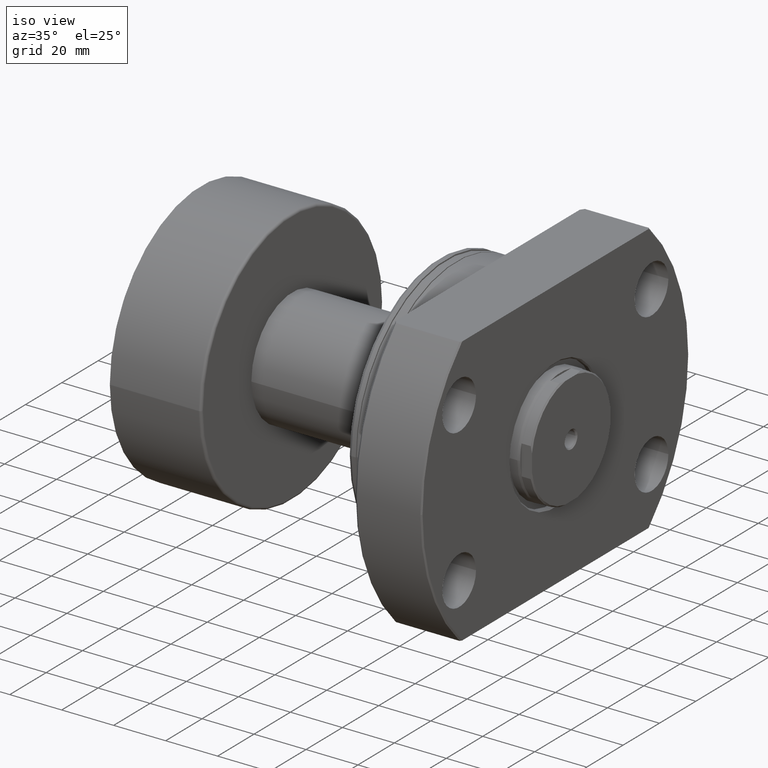
[diagram: clean part render]
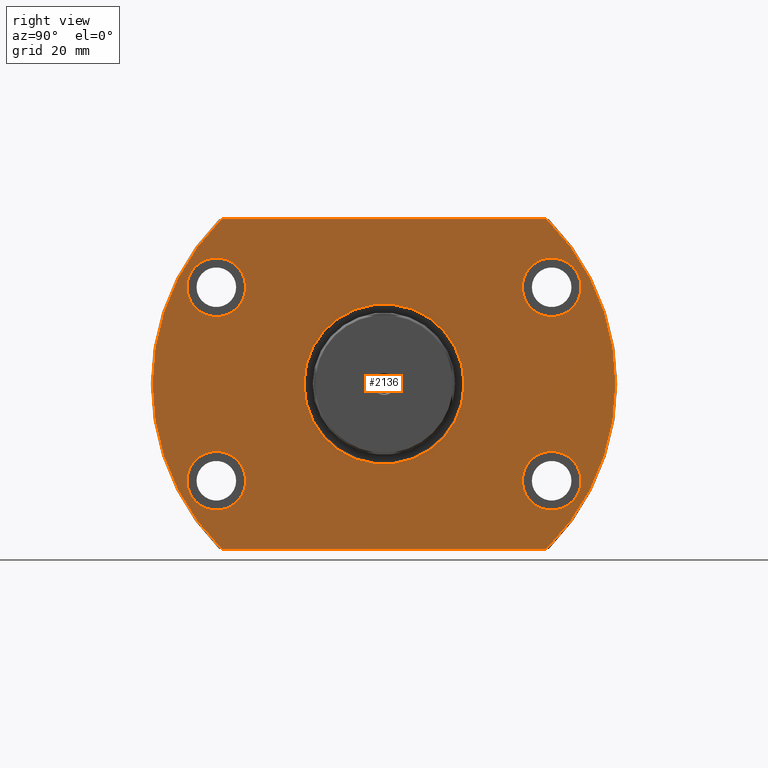
[diagram: tour spotlight — one face highlighted and labeled with its STEP entity id]
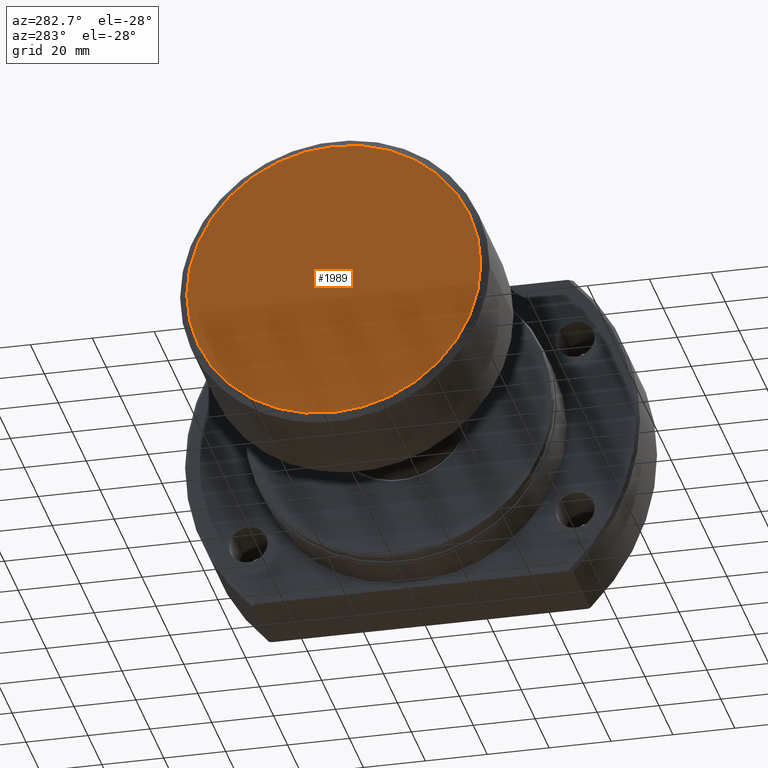
[diagram: tour spotlight — one face highlighted and labeled with its STEP entity id]
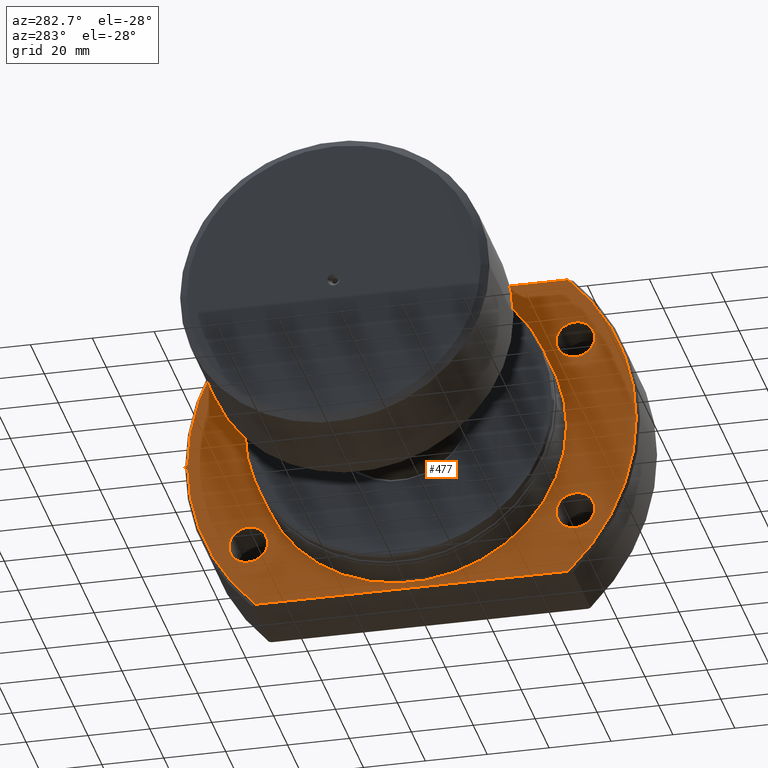
[diagram: tour spotlight — one face highlighted and labeled with its STEP entity id]
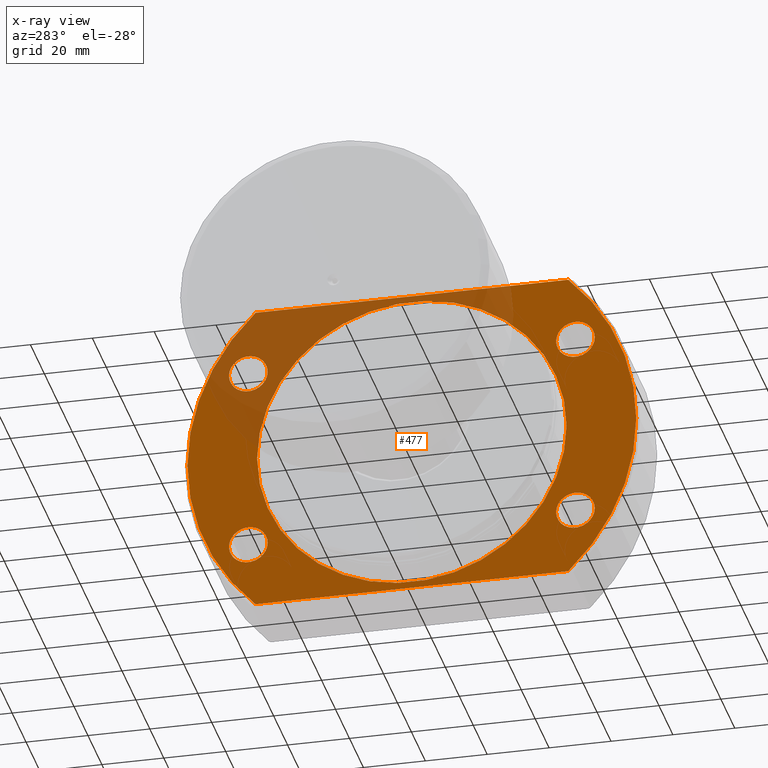
[diagram: x-ray of the same camera — body ghosted, this tour face saturated]
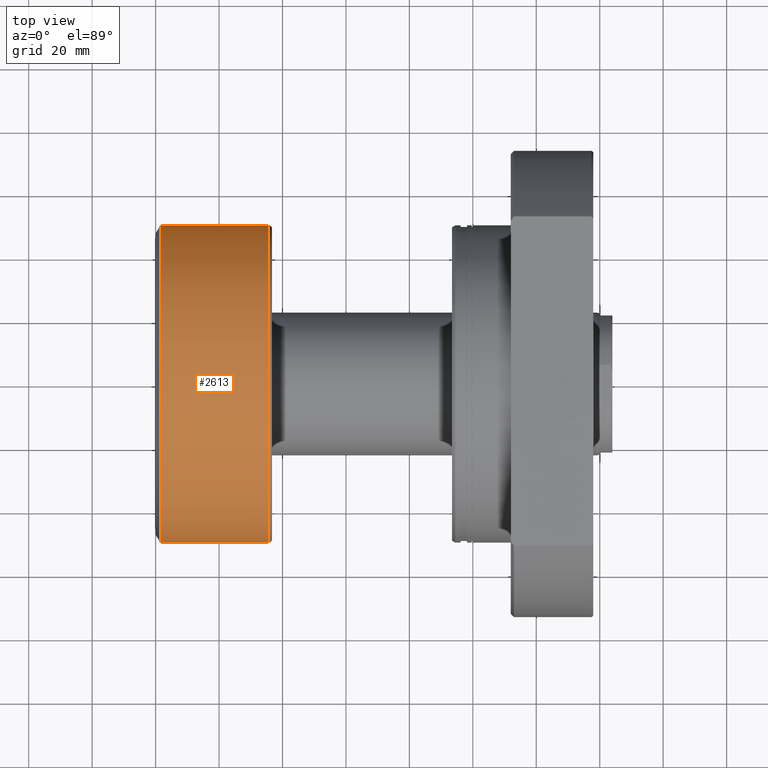
[diagram: tour spotlight — one face highlighted and labeled with its STEP entity id]
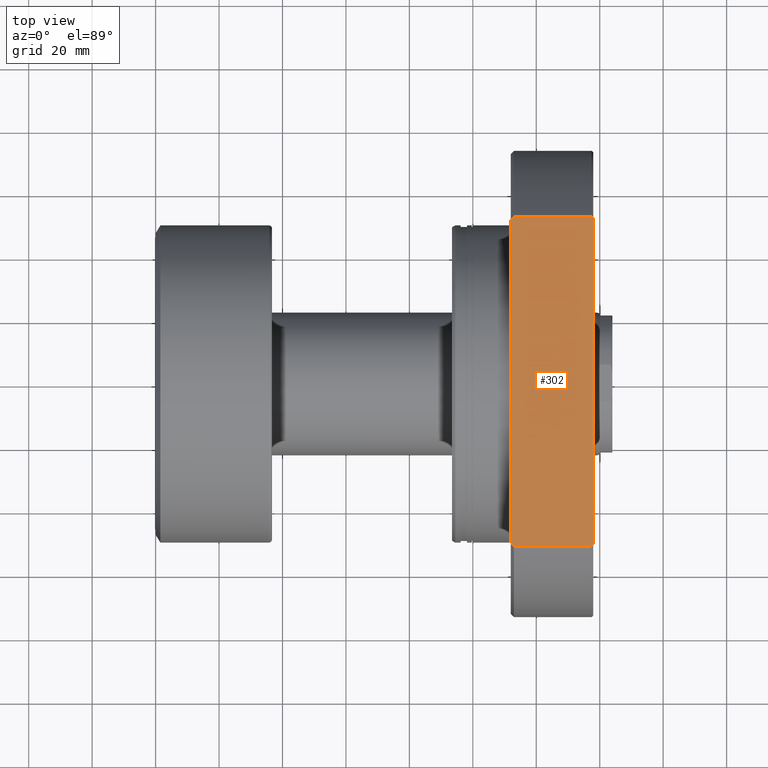
[diagram: tour spotlight — one face highlighted and labeled with its STEP entity id]
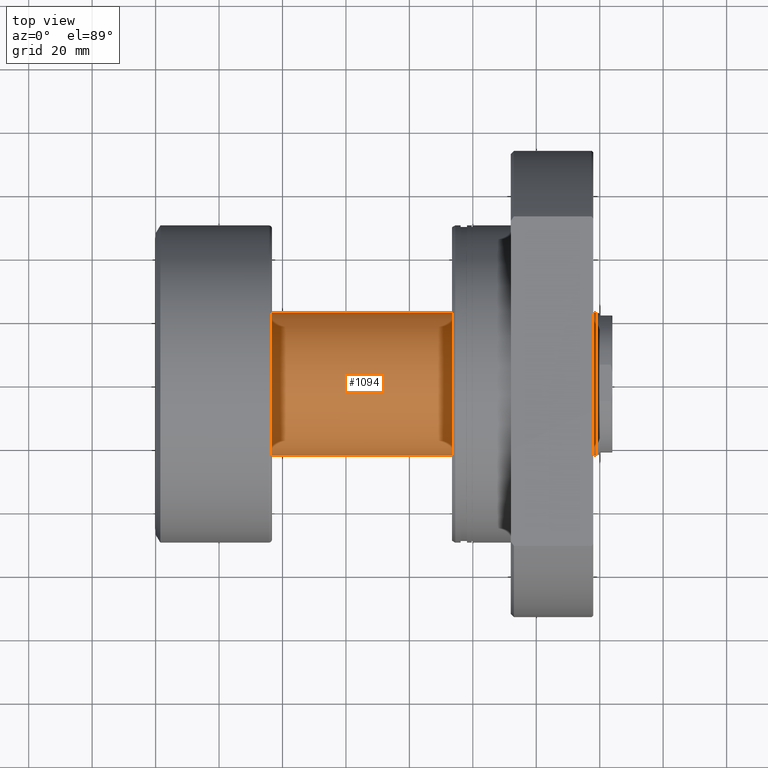
[diagram: tour spotlight — one face highlighted and labeled with its STEP entity id]
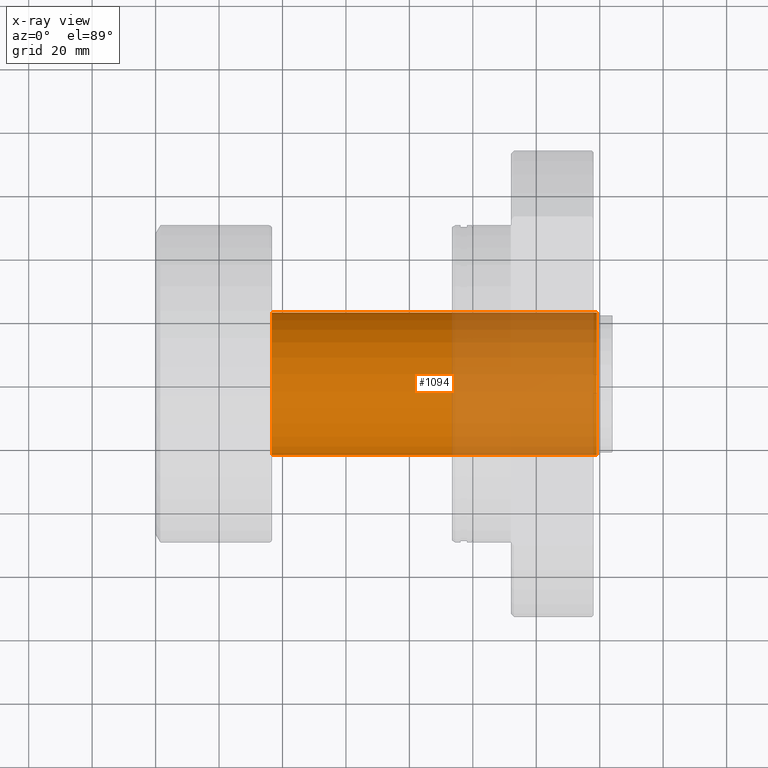
[diagram: x-ray of the same camera — body ghosted, this tour face saturated]
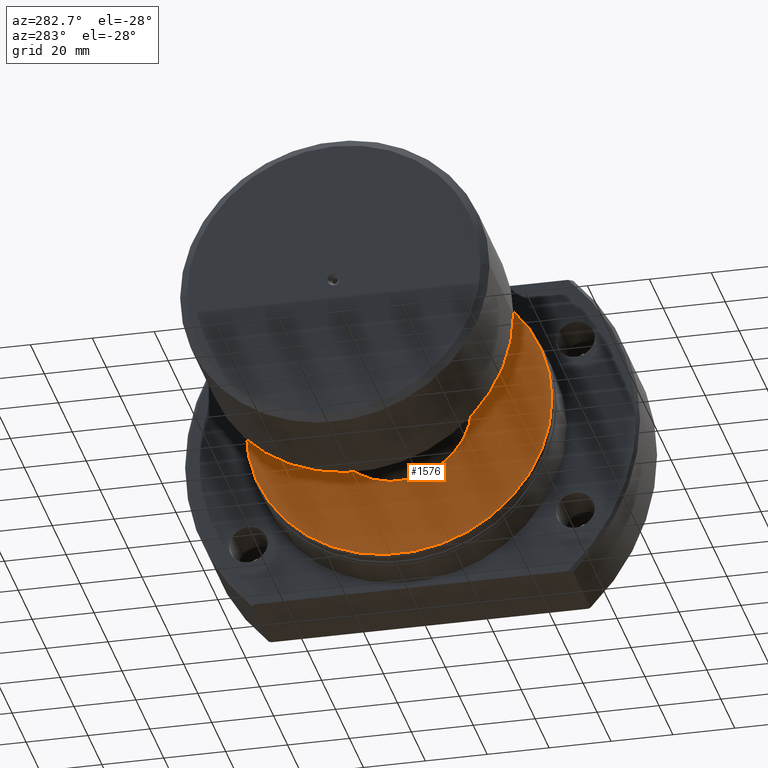
[diagram: tour spotlight — one face highlighted and labeled with its STEP entity id]
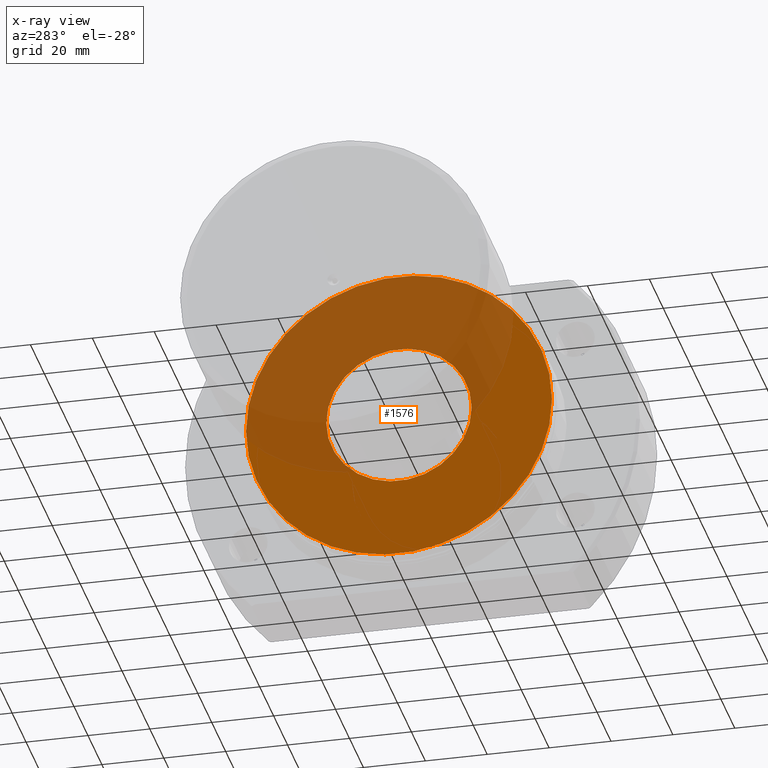
[diagram: x-ray of the same camera — body ghosted, this tour face saturated]
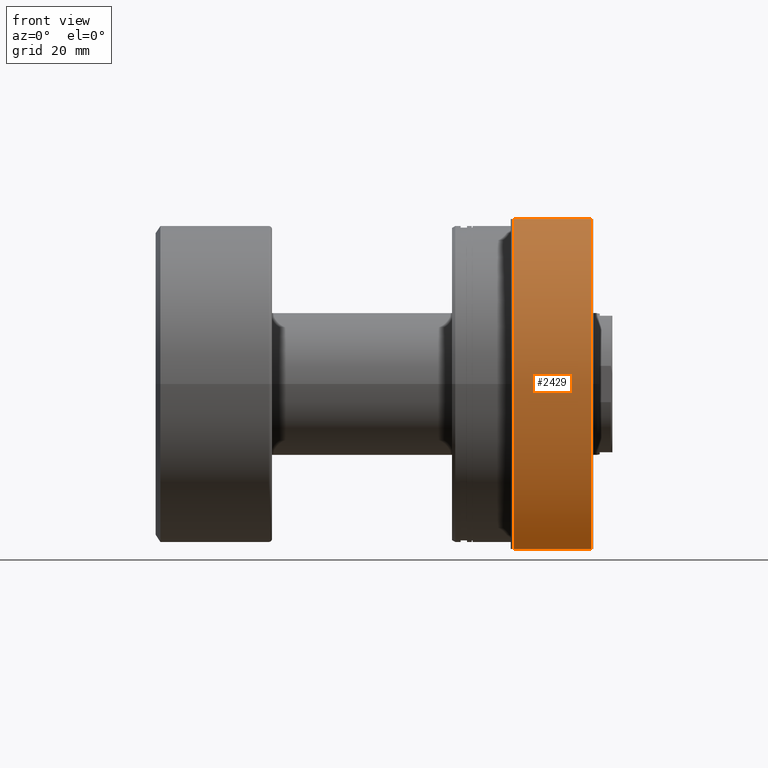
[diagram: tour spotlight — one face highlighted and labeled with its STEP entity id]
A machine part: a face-by-face anatomy tour. The part has 103 B-rep faces; the first image is the clean iso view, then the 8 largest visible faces are spotlighted one at a time (largest first), each with its STEP entity span.

Face 1 — right view, entity #2136. In plain terms, the highlighted planar face has unit normal (-1, -0, 0).
Definition (entity closure, byte-faithful):
#6 = CARTESIAN_POINT ( 'NONE',  ( 44.50000000000124345, 43.59999999999871534, -30.50000000000000000 ) ) ;
#61 = CARTESIAN_POINT ( 'NONE',  ( 44.49999999999819522, -62.10000000000128750, 30.50000000000000000 ) ) ;
#63 = DIRECTION ( 'NONE',  ( 0.000000000000000000, -1.000000000000000000, 0.000000000000000000 ) ) ;
#86 = DIRECTION ( 'NONE',  ( 2.925587700025750053E-14, 1.000000000000000000, 0.000000000000000000 ) ) ;
#128 = AXIS2_PLACEMENT_3D ( 'NONE', #1493, #285, #1222 ) ;
#131 = CIRCLE ( 'NONE', #545, 9.250000000000001776 ) ;
#144 = CIRCLE ( 'NONE', #980, 73.00000000000001421 ) ;
#162 = CARTESIAN_POINT ( 'NONE',  ( 44.50000000000152056, 52.84999999999871534, -30.50000000000000000 ) ) ;
#163 = EDGE_CURVE ( 'NONE', #2778, #225, #3155, .T. ) ;
#175 = DIRECTION ( 'NONE',  ( 1.000000000000000000, -2.888547605177540648E-14, 0.000000000000000000 ) ) ;
#190 = AXIS2_PLACEMENT_3D ( 'NONE', #1201, #175, #2147 ) ;
#198 = AXIS2_PLACEMENT_3D ( 'NONE', #2745, #2439, #212 ) ;
#209 = DIRECTION ( 'NONE',  ( -9.505334114941407284E-17, 1.000000000000000000, 0.000000000000000000 ) ) ;
#212 = DIRECTION ( 'NONE',  ( 5.504030557965630938E-17, -1.000000000000000000, 0.000000000000000000 ) ) ;
#225 = VERTEX_POINT ( 'NONE', #61 ) ;
#230 = DIRECTION ( 'NONE',  ( 2.925587700025750053E-14, 1.000000000000000000, 0.000000000000000000 ) ) ;
#242 = PLANE ( 'NONE',  #198 ) ;
#266 = CARTESIAN_POINT ( 'NONE',  ( 44.50000000000152056, 52.84999999999871534, -30.50000000000000000 ) ) ;
#285 = DIRECTION ( 'NONE',  ( 1.000000000000000000, -2.888547605177540648E-14, 0.000000000000000000 ) ) ;
#295 = EDGE_CURVE ( 'NONE', #1188, #2598, #1478, .T. ) ;
#297 = ORIENTED_EDGE ( 'NONE', *, *, #1362, .F. ) ;
#315 = EDGE_CURVE ( 'NONE', #688, #826, #2517, .T. ) ;
#318 = CARTESIAN_POINT ( 'NONE',  ( 44.49999999999999289, -1.284477419691526336E-12, 0.000000000000000000 ) ) ;
#325 = CARTESIAN_POINT ( 'NONE',  ( 44.49999999999846523, -52.85000000000128750, -30.50000000000000000 ) ) ;
#367 = CARTESIAN_POINT ( 'NONE',  ( 44.49999999999846523, -52.85000000000128750, -30.50000000000000000 ) ) ;
#380 = CARTESIAN_POINT ( 'NONE',  ( 44.49999999999999289, -1.284477419691526336E-12, 0.000000000000000000 ) ) ;
#447 = CIRCLE ( 'NONE', #3111, 25.24999999999855049 ) ;
#448 = AXIS2_PLACEMENT_3D ( 'NONE', #1611, #882, #629 ) ;
#454 = CARTESIAN_POINT ( 'NONE',  ( 44.49999999999999289, 51.94468211472779728, 52.00000000000000000 ) ) ;
#468 = DIRECTION ( 'NONE',  ( -0.000000000000000000, 1.000000000000000000, 0.000000000000000000 ) ) ;
#478 = DIRECTION ( 'NONE',  ( 1.000000000000000000, -2.886466111666351885E-14, 0.000000000000000000 ) ) ;
#482 = FACE_BOUND ( 'NONE', #1607, .T. ) ;
#507 = CIRCLE ( 'NONE', #821, 9.250000000000001776 ) ;
#516 = CIRCLE ( 'NONE', #772, 73.00000000000001421 ) ;
#527 = LINE ( 'NONE', #2026, #2221 ) ;
#545 = AXIS2_PLACEMENT_3D ( 'NONE', #1681, #478, #3002 ) ;
#589 = CARTESIAN_POINT ( 'NONE',  ( 44.49999999999873523, -43.60000000000128040, 30.50000000000000000 ) ) ;
#629 = DIRECTION ( 'NONE',  ( 2.850572630794320387E-14, 1.000000000000000000, 0.000000000000000000 ) ) ;
#633 = VERTEX_POINT ( 'NONE', #6 ) ;
#662 = ORIENTED_EDGE ( 'NONE', *, *, #163, .F. ) ;
#688 = VERTEX_POINT ( 'NONE', #858 ) ;
#693 = DIRECTION ( 'NONE',  ( 1.000000000000000000, 5.504030557965630938E-17, -0.000000000000000000 ) ) ;
#714 = CARTESIAN_POINT ( 'NONE',  ( 44.49999999999999289, 2.449293598294705330E-15, 0.000000000000000000 ) ) ;
#772 = AXIS2_PLACEMENT_3D ( 'NONE', #714, #3182, #1786 ) ;
#802 = CARTESIAN_POINT ( 'NONE',  ( 44.49999999999999289, 25.24999999999726441, 0.000000000000000000 ) ) ;
#821 = AXIS2_PLACEMENT_3D ( 'NONE', #162, #2391, #2878 ) ;
#826 = VERTEX_POINT ( 'NONE', #2462 ) ;
#844 = EDGE_CURVE ( 'NONE', #1578, #1983, #131, .T. ) ;
#858 = CARTESIAN_POINT ( 'NONE',  ( 44.49999999999999289, -51.23475382979801651, 52.00000000000000000 ) ) ;
#879 = DIRECTION ( 'NONE',  ( -1.000000000000000000, -5.504030557965630938E-17, 0.000000000000000000 ) ) ;
#882 = DIRECTION ( 'NONE',  ( 1.000000000000000000, -2.886466111666351885E-14, 0.000000000000000000 ) ) ;
#965 = ORIENTED_EDGE ( 'NONE', *, *, #2587, .T. ) ;
#980 = AXIS2_PLACEMENT_3D ( 'NONE', #1930, #693, #209 ) ;
#1089 = AXIS2_PLACEMENT_3D ( 'NONE', #266, #1768, #230 ) ;
#1115 = DIRECTION ( 'NONE',  ( 1.000000000000000000, -2.888547605177540648E-14, 0.000000000000000000 ) ) ;
#1144 = CARTESIAN_POINT ( 'NONE',  ( 44.50000000000179057, 62.09999999999871534, -30.50000000000000000 ) ) ;
#1157 = ORIENTED_EDGE ( 'NONE', *, *, #2721, .F. ) ;
#1188 = VERTEX_POINT ( 'NONE', #3089 ) ;
#1201 = CARTESIAN_POINT ( 'NONE',  ( 44.49999999999846523, -52.85000000000128750, 30.50000000000000000 ) ) ;
#1222 = DIRECTION ( 'NONE',  ( 2.925587700025750053E-14, 1.000000000000000000, 0.000000000000000000 ) ) ;
#1242 = EDGE_CURVE ( 'NONE', #225, #2778, #2781, .T. ) ;
#1245 = FACE_BOUND ( 'NONE', #2258, .T. ) ;
#1321 = DIRECTION ( 'NONE',  ( 2.925587700025750053E-14, 1.000000000000000000, 0.000000000000000000 ) ) ;
#1362 = EDGE_CURVE ( 'NONE', #1983, #1578, #2420, .T. ) ;
#1403 = EDGE_CURVE ( 'NONE', #2811, #2224, #447, .T. ) ;
#1408 = VERTEX_POINT ( 'NONE', #3080 ) ;
#1478 = CIRCLE ( 'NONE', #2413, 9.250000000000001776 ) ;
#1493 = CARTESIAN_POINT ( 'NONE',  ( 44.49999999999846523, -52.85000000000128750, 30.50000000000000000 ) ) ;
#1498 = AXIS2_PLACEMENT_3D ( 'NONE', #325, #1115, #86 ) ;
#1499 = LINE ( 'NONE', #454, #2690 ) ;
#1578 = VERTEX_POINT ( 'NONE', #1857 ) ;
#1607 = EDGE_LOOP ( 'NONE', ( #1891, #2438 ) ) ;
#1611 = CARTESIAN_POINT ( 'NONE',  ( 44.50000000000152056, 52.84999999999871534, 30.50000000000000000 ) ) ;
#1612 = DIRECTION ( 'NONE',  ( -9.505334114941407284E-17, 1.000000000000000000, 0.000000000000000000 ) ) ;
#1633 = VERTEX_POINT ( 'NONE', #2909 ) ;
#1681 = CARTESIAN_POINT ( 'NONE',  ( 44.50000000000152056, 52.84999999999871534, 30.50000000000000000 ) ) ;
#1729 = DIRECTION ( 'NONE',  ( -5.504030557965630938E-17, 1.000000000000000000, -0.000000000000000000 ) ) ;
#1756 = AXIS2_PLACEMENT_3D ( 'NONE', #318, #1810, #63 ) ;
#1762 = FACE_BOUND ( 'NONE', #2645, .T. ) ;
#1768 = DIRECTION ( 'NONE',  ( 1.000000000000000000, -2.888547605177540648E-14, 0.000000000000000000 ) ) ;
#1786 = DIRECTION ( 'NONE',  ( -9.505334114941407284E-17, 1.000000000000000000, 0.000000000000000000 ) ) ;
#1810 = DIRECTION ( 'NONE',  ( -1.000000000000000000, -5.504030557965630938E-17, 0.000000000000000000 ) ) ;
#1833 = DIRECTION ( 'NONE',  ( 1.000000000000000000, -2.888547605177540648E-14, 0.000000000000000000 ) ) ;
#1843 = ORIENTED_EDGE ( 'NONE', *, *, #844, .F. ) ;
#1844 = AXIS2_PLACEMENT_3D ( 'NONE', #1848, #3035, #1612 ) ;
#1848 = CARTESIAN_POINT ( 'NONE',  ( 44.49999999999999289, 2.449293598294705330E-15, 0.000000000000000000 ) ) ;
#1857 = CARTESIAN_POINT ( 'NONE',  ( 44.50000000000125056, 43.59999999999871534, 30.50000000000000000 ) ) ;
#1891 = ORIENTED_EDGE ( 'NONE', *, *, #1944, .F. ) ;
#1922 = ORIENTED_EDGE ( 'NONE', *, *, #2563, .T. ) ;
#1930 = CARTESIAN_POINT ( 'NONE',  ( 44.49999999999999289, 2.449293598294705330E-15, 0.000000000000000000 ) ) ;
#1944 = EDGE_CURVE ( 'NONE', #2927, #633, #507, .T. ) ;
#1967 = FACE_BOUND ( 'NONE', #2077, .T. ) ;
#1983 = VERTEX_POINT ( 'NONE', #2343 ) ;
#2026 = CARTESIAN_POINT ( 'NONE',  ( 44.50000000000000000, -73.00000000000001421, -52.00000000000000000 ) ) ;
#2031 = ORIENTED_EDGE ( 'NONE', *, *, #295, .F. ) ;
#2077 = EDGE_LOOP ( 'NONE', ( #2538, #2126 ) ) ;
#2126 = ORIENTED_EDGE ( 'NONE', *, *, #2287, .T. ) ;
#2135 = EDGE_CURVE ( 'NONE', #688, #1408, #1499, .T. ) ;
#2136 = ADVANCED_FACE ( 'NONE', ( #1967, #1245, #2491, #1762, #482, #3184 ), #242, .F. ) ;
#2147 = DIRECTION ( 'NONE',  ( 2.925587700025750053E-14, 1.000000000000000000, 0.000000000000000000 ) ) ;
#2221 = VECTOR ( 'NONE', #1729, 1000.000000000000000 ) ;
#2224 = VERTEX_POINT ( 'NONE', #2505 ) ;
#2258 = EDGE_LOOP ( 'NONE', ( #297, #1843 ) ) ;
#2287 = EDGE_CURVE ( 'NONE', #2224, #2811, #3173, .T. ) ;
#2343 = CARTESIAN_POINT ( 'NONE',  ( 44.50000000000178346, 62.09999999999871534, 30.50000000000000000 ) ) ;
#2380 = EDGE_LOOP ( 'NONE', ( #662, #2498 ) ) ;
#2391 = DIRECTION ( 'NONE',  ( 1.000000000000000000, -2.888547605177540648E-14, 0.000000000000000000 ) ) ;
#2413 = AXIS2_PLACEMENT_3D ( 'NONE', #367, #1833, #1321 ) ;
#2420 = CIRCLE ( 'NONE', #448, 9.250000000000001776 ) ;
#2438 = ORIENTED_EDGE ( 'NONE', *, *, #2981, .F. ) ;
#2439 = DIRECTION ( 'NONE',  ( -1.000000000000000000, -5.504030557965630938E-17, 0.000000000000000000 ) ) ;
#2462 = CARTESIAN_POINT ( 'NONE',  ( 44.50000000000000000, -73.00000000000001421, 0.000000000000000000 ) ) ;
#2478 = CIRCLE ( 'NONE', #1089, 9.250000000000001776 ) ;
#2491 = FACE_BOUND ( 'NONE', #2380, .T. ) ;
#2495 = ORIENTED_EDGE ( 'NONE', *, *, #3061, .T. ) ;
#2498 = ORIENTED_EDGE ( 'NONE', *, *, #1242, .F. ) ;
#2505 = CARTESIAN_POINT ( 'NONE',  ( 44.49999999999999289, -25.25000000000129674, 3.092233167847068013E-15 ) ) ;
#2517 = CIRCLE ( 'NONE', #1844, 73.00000000000001421 ) ;
#2538 = ORIENTED_EDGE ( 'NONE', *, *, #1403, .T. ) ;
#2542 = ORIENTED_EDGE ( 'NONE', *, *, #315, .T. ) ;
#2563 = EDGE_CURVE ( 'NONE', #826, #1633, #516, .T. ) ;
#2582 = ORIENTED_EDGE ( 'NONE', *, *, #2135, .F. ) ;
#2587 = EDGE_CURVE ( 'NONE', #2856, #1408, #144, .T. ) ;
#2598 = VERTEX_POINT ( 'NONE', #3190 ) ;
#2645 = EDGE_LOOP ( 'NONE', ( #2031, #1157 ) ) ;
#2690 = VECTOR ( 'NONE', #468, 1000.000000000000000 ) ;
#2692 = CARTESIAN_POINT ( 'NONE',  ( 44.49999999999998579, 51.23475382979800941, -52.00000000000000000 ) ) ;
#2721 = EDGE_CURVE ( 'NONE', #2598, #1188, #3216, .T. ) ;
#2745 = CARTESIAN_POINT ( 'NONE',  ( 44.50000000000000000, -73.00000000000001421, 0.000000000000000000 ) ) ;
#2778 = VERTEX_POINT ( 'NONE', #589 ) ;
#2781 = CIRCLE ( 'NONE', #190, 9.250000000000001776 ) ;
#2811 = VERTEX_POINT ( 'NONE', #802 ) ;
#2856 = VERTEX_POINT ( 'NONE', #2692 ) ;
#2878 = DIRECTION ( 'NONE',  ( 2.925587700025750053E-14, 1.000000000000000000, 0.000000000000000000 ) ) ;
#2909 = CARTESIAN_POINT ( 'NONE',  ( 44.49999999999999289, -51.23475382979800230, -52.00000000000000000 ) ) ;
#2927 = VERTEX_POINT ( 'NONE', #1144 ) ;
#2943 = EDGE_LOOP ( 'NONE', ( #2582, #2542, #1922, #2495, #965 ) ) ;
#2981 = EDGE_CURVE ( 'NONE', #633, #2927, #2478, .T. ) ;
#3002 = DIRECTION ( 'NONE',  ( 2.850572630794320387E-14, 1.000000000000000000, 0.000000000000000000 ) ) ;
#3035 = DIRECTION ( 'NONE',  ( 1.000000000000000000, 5.504030557965630938E-17, -0.000000000000000000 ) ) ;
#3061 = EDGE_CURVE ( 'NONE', #1633, #2856, #527, .T. ) ;
#3080 = CARTESIAN_POINT ( 'NONE',  ( 44.49999999999998579, 51.23475382979800230, 52.00000000000000000 ) ) ;
#3089 = CARTESIAN_POINT ( 'NONE',  ( 44.49999999999873523, -43.60000000000128040, -30.50000000000000000 ) ) ;
#3111 = AXIS2_PLACEMENT_3D ( 'NONE', #380, #879, #3134 ) ;
#3134 = DIRECTION ( 'NONE',  ( 0.000000000000000000, -1.000000000000000000, 0.000000000000000000 ) ) ;
#3155 = CIRCLE ( 'NONE', #128, 9.250000000000001776 ) ;
#3173 = CIRCLE ( 'NONE', #1756, 25.24999999999855049 ) ;
#3182 = DIRECTION ( 'NONE',  ( 1.000000000000000000, 5.504030557965630938E-17, -0.000000000000000000 ) ) ;
#3184 = FACE_OUTER_BOUND ( 'NONE', #2943, .T. ) ;
#3190 = CARTESIAN_POINT ( 'NONE',  ( 44.49999999999819522, -62.10000000000128750, -30.50000000000000000 ) ) ;
#3216 = CIRCLE ( 'NONE', #1498, 9.250000000000001776 ) ;

Face 2 — auxiliary view, entity #1989. In plain terms, the highlighted planar face has unit normal (-1, -0, 0).
Definition (entity closure, byte-faithful):
#126 = EDGE_CURVE ( 'NONE', #636, #2717, #177, .T. ) ;
#177 = CIRCLE ( 'NONE', #2411, 47.50000000000000000 ) ;
#330 = VERTEX_POINT ( 'NONE', #2796 ) ;
#388 = DIRECTION ( 'NONE',  ( 1.069542322069065801E-17, -1.000000000000000000, 0.000000000000000000 ) ) ;
#533 = DIRECTION ( 'NONE',  ( -1.000000000000000000, -1.069542322069065801E-17, -0.000000000000000000 ) ) ;
#546 = DIRECTION ( 'NONE',  ( 1.069542322069065647E-17, -1.000000000000000000, 0.000000000000000000 ) ) ;
#636 = VERTEX_POINT ( 'NONE', #1007 ) ;
#709 = CIRCLE ( 'NONE', #1747, 2.074999999999993516 ) ;
#888 = FACE_BOUND ( 'NONE', #2928, .T. ) ;
#901 = EDGE_CURVE ( 'NONE', #2872, #330, #709, .T. ) ;
#935 = DIRECTION ( 'NONE',  ( -1.000000000000000000, -1.069542322069065801E-17, 0.000000000000000000 ) ) ;
#1007 = CARTESIAN_POINT ( 'NONE',  ( 5.817072295949928215E-15, -47.50000000000000000, 5.970153145843347150E-15 ) ) ;
#1030 = EDGE_CURVE ( 'NONE', #2717, #636, #1385, .T. ) ;
#1220 = DIRECTION ( 'NONE',  ( 1.000000000000000000, 1.069542322069065801E-17, 0.000000000000000000 ) ) ;
#1302 = CIRCLE ( 'NONE', #1397, 2.074999999999993516 ) ;
#1332 = DIRECTION ( 'NONE',  ( 1.000000000000000000, 1.069542322069065801E-17, 0.000000000000000000 ) ) ;
#1345 = AXIS2_PLACEMENT_3D ( 'NONE', #1878, #935, #388 ) ;
#1380 = EDGE_LOOP ( 'NONE', ( #1826, #2195 ) ) ;
#1385 = CIRCLE ( 'NONE', #3202, 47.50000000000000000 ) ;
#1397 = AXIS2_PLACEMENT_3D ( 'NONE', #3109, #1332, #1623 ) ;
#1399 = CARTESIAN_POINT ( 'NONE',  ( 2.654519846483561026E-15, 0.000000000000000000, 0.000000000000000000 ) ) ;
#1474 = ORIENTED_EDGE ( 'NONE', *, *, #2672, .T. ) ;
#1623 = DIRECTION ( 'NONE',  ( 1.069542322069059484E-17, -1.000000000000000000, 0.000000000000000000 ) ) ;
#1747 = AXIS2_PLACEMENT_3D ( 'NONE', #1399, #1220, #1896 ) ;
#1788 = CARTESIAN_POINT ( 'NONE',  ( 5.309039692967122051E-15, 5.678242641172895614E-32, 0.000000000000000000 ) ) ;
#1826 = ORIENTED_EDGE ( 'NONE', *, *, #1030, .T. ) ;
#1878 = CARTESIAN_POINT ( 'NONE',  ( 2.654519846483561026E-15, 2.839121320586447807E-32, 0.000000000000000000 ) ) ;
#1896 = DIRECTION ( 'NONE',  ( 1.069542322069059484E-17, -1.000000000000000000, 0.000000000000000000 ) ) ;
#1913 = DIRECTION ( 'NONE',  ( -1.000000000000000000, -1.069542322069065801E-17, -0.000000000000000000 ) ) ;
#1989 = ADVANCED_FACE ( 'NONE', ( #888, #2134 ), #2641, .T. ) ;
#2039 = CARTESIAN_POINT ( 'NONE',  ( 4.801007089984315887E-15, 47.50000000000000000, 0.000000000000000000 ) ) ;
#2102 = ORIENTED_EDGE ( 'NONE', *, *, #901, .T. ) ;
#2134 = FACE_OUTER_BOUND ( 'NONE', #1380, .T. ) ;
#2183 = DIRECTION ( 'NONE',  ( 1.069542322069065647E-17, -1.000000000000000000, 0.000000000000000000 ) ) ;
#2195 = ORIENTED_EDGE ( 'NONE', *, *, #126, .T. ) ;
#2411 = AXIS2_PLACEMENT_3D ( 'NONE', #1788, #533, #546 ) ;
#2641 = PLANE ( 'NONE',  #1345 ) ;
#2672 = EDGE_CURVE ( 'NONE', #330, #2872, #1302, .T. ) ;
#2717 = VERTEX_POINT ( 'NONE', #2039 ) ;
#2796 = CARTESIAN_POINT ( 'NONE',  ( 2.654519846483561026E-15, 2.541142108230750183E-16, -2.074999999999993516 ) ) ;
#2872 = VERTEX_POINT ( 'NONE', #3146 ) ;
#2918 = CARTESIAN_POINT ( 'NONE',  ( 5.309039692967122051E-15, 5.678242641172895614E-32, 0.000000000000000000 ) ) ;
#2928 = EDGE_LOOP ( 'NONE', ( #2102, #1474 ) ) ;
#3109 = CARTESIAN_POINT ( 'NONE',  ( 2.654519846483561026E-15, 0.000000000000000000, 0.000000000000000000 ) ) ;
#3146 = CARTESIAN_POINT ( 'NONE',  ( 2.654519846483561026E-15, 0.000000000000000000, 2.074999999999993516 ) ) ;
#3202 = AXIS2_PLACEMENT_3D ( 'NONE', #2918, #1913, #2183 ) ;

Face 3 — auxiliary view, entity #477. An x-ray twin of the same camera follows (body ghosted, this face saturated) — the face is partly hidden behind the body. In plain terms, the highlighted planar face has unit normal (1, 0, 0).
Definition (entity closure, byte-faithful):
#3 = FACE_BOUND ( 'NONE', #160, .T. ) ;
#8 = DIRECTION ( 'NONE',  ( 1.000000000000000000, 5.504030557965630938E-17, -0.000000000000000000 ) ) ;
#68 = VERTEX_POINT ( 'NONE', #237 ) ;
#80 = AXIS2_PLACEMENT_3D ( 'NONE', #878, #117, #610 ) ;
#81 = EDGE_LOOP ( 'NONE', ( #263, #1645 ) ) ;
#95 = ORIENTED_EDGE ( 'NONE', *, *, #2336, .F. ) ;
#104 = DIRECTION ( 'NONE',  ( 1.000000000000000000, 5.504030557965630938E-17, -0.000000000000000000 ) ) ;
#117 = DIRECTION ( 'NONE',  ( 1.000000000000000000, 5.504030557965630938E-17, -0.000000000000000000 ) ) ;
#160 = EDGE_LOOP ( 'NONE', ( #653, #2390 ) ) ;
#174 = DIRECTION ( 'NONE',  ( -4.785444071660162135E-17, 1.000000000000000000, 0.000000000000000000 ) ) ;
#179 = CARTESIAN_POINT ( 'NONE',  ( 18.50000000000000000, 59.09999999999947562, 30.50000000000000000 ) ) ;
#182 = VERTEX_POINT ( 'NONE', #1977 ) ;
#187 = AXIS2_PLACEMENT_3D ( 'NONE', #1212, #8, #2016 ) ;
#189 = CARTESIAN_POINT ( 'NONE',  ( 18.50000000000000000, 46.59999999999946851, -30.50000000000000000 ) ) ;
#211 = ORIENTED_EDGE ( 'NONE', *, *, #563, .T. ) ;
#231 = FACE_BOUND ( 'NONE', #1789, .T. ) ;
#237 = CARTESIAN_POINT ( 'NONE',  ( 18.50000000000000711, -46.60000000000053433, -30.50000000000000000 ) ) ;
#253 = DIRECTION ( 'NONE',  ( 1.000000000000000000, 5.504030557965630938E-17, -0.000000000000000000 ) ) ;
#263 = ORIENTED_EDGE ( 'NONE', *, *, #2870, .T. ) ;
#288 = DIRECTION ( 'NONE',  ( 1.000000000000000000, 5.504030557965630938E-17, -0.000000000000000000 ) ) ;
#357 = VERTEX_POINT ( 'NONE', #2082 ) ;
#373 = CARTESIAN_POINT ( 'NONE',  ( 18.50000000000000355, 50.51979809935892263, 52.00000000000000000 ) ) ;
#413 = DIRECTION ( 'NONE',  ( 1.000000000000000000, 5.504030557965630938E-17, -0.000000000000000000 ) ) ;
#436 = DIRECTION ( 'NONE',  ( 1.000000000000000000, 5.504030557965630938E-17, -0.000000000000000000 ) ) ;
#477 = ADVANCED_FACE ( 'NONE', ( #1940, #2246, #1254, #231, #3, #1023 ), #969, .F. ) ;
#563 = EDGE_CURVE ( 'NONE', #1386, #1952, #2367, .T. ) ;
#575 = EDGE_CURVE ( 'NONE', #1097, #2148, #758, .T. ) ;
#582 = DIRECTION ( 'NONE',  ( 1.000000000000000000, 5.504030557965630938E-17, -0.000000000000000000 ) ) ;
#610 = DIRECTION ( 'NONE',  ( 0.000000000000000000, 1.000000000000000000, 0.000000000000000000 ) ) ;
#627 = DIRECTION ( 'NONE',  ( 1.000000000000000000, 5.504030557965630938E-17, -0.000000000000000000 ) ) ;
#653 = ORIENTED_EDGE ( 'NONE', *, *, #575, .T. ) ;
#654 = AXIS2_PLACEMENT_3D ( 'NONE', #2979, #253, #3168 ) ;
#667 = EDGE_CURVE ( 'NONE', #1892, #357, #2309, .T. ) ;
#682 = EDGE_CURVE ( 'NONE', #182, #3072, #2108, .T. ) ;
#701 = EDGE_LOOP ( 'NONE', ( #2720, #3106 ) ) ;
#708 = DIRECTION ( 'NONE',  ( -5.504030557965630938E-17, 1.000000000000000000, 0.000000000000000000 ) ) ;
#758 = CIRCLE ( 'NONE', #2468, 50.00000000000000000 ) ;
#773 = CARTESIAN_POINT ( 'NONE',  ( 18.50000000000000711, -50.00000000000000000, 0.000000000000000000 ) ) ;
#828 = CIRCLE ( 'NONE', #931, 6.249999999999998224 ) ;
#865 = CARTESIAN_POINT ( 'NONE',  ( 18.50000000000000711, 1.018245653223641951E-15, 0.000000000000000000 ) ) ;
#878 = CARTESIAN_POINT ( 'NONE',  ( 18.50000000000000000, 52.84999999999947562, 30.50000000000000000 ) ) ;
#914 = DIRECTION ( 'NONE',  ( 1.000000000000000000, 5.504030557965630938E-17, -0.000000000000000000 ) ) ;
#931 = AXIS2_PLACEMENT_3D ( 'NONE', #2576, #627, #1125 ) ;
#969 = PLANE ( 'NONE',  #2002 ) ;
#1004 = CARTESIAN_POINT ( 'NONE',  ( 18.50000000000000711, -50.51979809935892263, -52.00000000000000000 ) ) ;
#1005 = DIRECTION ( 'NONE',  ( 1.000000000000000000, 5.504030557965630938E-17, -0.000000000000000000 ) ) ;
#1023 = FACE_OUTER_BOUND ( 'NONE', #1613, .T. ) ;
#1055 = ORIENTED_EDGE ( 'NONE', *, *, #667, .T. ) ;
#1097 = VERTEX_POINT ( 'NONE', #2457 ) ;
#1125 = DIRECTION ( 'NONE',  ( 0.000000000000000000, 1.000000000000000000, 0.000000000000000000 ) ) ;
#1147 = CIRCLE ( 'NONE', #1960, 72.49999999999992895 ) ;
#1152 = ORIENTED_EDGE ( 'NONE', *, *, #682, .T. ) ;
#1158 = CARTESIAN_POINT ( 'NONE',  ( 18.50000000000000000, 52.84999999999946851, -30.50000000000000000 ) ) ;
#1181 = VERTEX_POINT ( 'NONE', #2572 ) ;
#1212 = CARTESIAN_POINT ( 'NONE',  ( 18.50000000000000000, 52.84999999999946851, -30.50000000000000000 ) ) ;
#1223 = EDGE_CURVE ( 'NONE', #357, #1892, #3108, .T. ) ;
#1233 = AXIS2_PLACEMENT_3D ( 'NONE', #2555, #914, #1733 ) ;
#1238 = CIRCLE ( 'NONE', #2736, 6.249999999999998224 ) ;
#1243 = CARTESIAN_POINT ( 'NONE',  ( 18.50000000000000000, 1.018245653223641557E-15, 0.000000000000000000 ) ) ;
#1253 = EDGE_CURVE ( 'NONE', #2148, #1097, #3048, .T. ) ;
#1254 = FACE_BOUND ( 'NONE', #81, .T. ) ;
#1271 = VERTEX_POINT ( 'NONE', #1430 ) ;
#1315 = ORIENTED_EDGE ( 'NONE', *, *, #2174, .F. ) ;
#1338 = DIRECTION ( 'NONE',  ( -4.785444071660162135E-17, 1.000000000000000000, 0.000000000000000000 ) ) ;
#1368 = ORIENTED_EDGE ( 'NONE', *, *, #2648, .F. ) ;
#1386 = VERTEX_POINT ( 'NONE', #189 ) ;
#1392 = CIRCLE ( 'NONE', #1806, 6.249999999999998224 ) ;
#1400 = AXIS2_PLACEMENT_3D ( 'NONE', #2426, #2659, #2929 ) ;
#1430 = CARTESIAN_POINT ( 'NONE',  ( 18.50000000000000711, -59.10000000000053433, -30.50000000000000000 ) ) ;
#1465 = VERTEX_POINT ( 'NONE', #2248 ) ;
#1573 = CARTESIAN_POINT ( 'NONE',  ( 18.50000000000000711, 1.018245653223641951E-15, 0.000000000000000000 ) ) ;
#1580 = DIRECTION ( 'NONE',  ( 0.000000000000000000, 1.000000000000000000, 0.000000000000000000 ) ) ;
#1595 = ORIENTED_EDGE ( 'NONE', *, *, #2200, .F. ) ;
#1613 = EDGE_LOOP ( 'NONE', ( #1315, #1368, #1595, #1152, #95 ) ) ;
#1616 = CARTESIAN_POINT ( 'NONE',  ( 18.50000000000000711, -52.85000000000052722, 30.50000000000000000 ) ) ;
#1645 = ORIENTED_EDGE ( 'NONE', *, *, #2780, .T. ) ;
#1688 = EDGE_LOOP ( 'NONE', ( #1055, #1798 ) ) ;
#1733 = DIRECTION ( 'NONE',  ( 0.000000000000000000, 1.000000000000000000, 0.000000000000000000 ) ) ;
#1789 = EDGE_LOOP ( 'NONE', ( #2883, #211 ) ) ;
#1798 = ORIENTED_EDGE ( 'NONE', *, *, #1223, .T. ) ;
#1806 = AXIS2_PLACEMENT_3D ( 'NONE', #1616, #436, #1888 ) ;
#1846 = DIRECTION ( 'NONE',  ( 5.504030557965630938E-17, -1.000000000000000000, 0.000000000000000000 ) ) ;
#1888 = DIRECTION ( 'NONE',  ( 0.000000000000000000, 1.000000000000000000, 0.000000000000000000 ) ) ;
#1892 = VERTEX_POINT ( 'NONE', #179 ) ;
#1934 = CARTESIAN_POINT ( 'NONE',  ( 18.50000000000000355, -50.00000000000000000, 6.123233995736766085E-15 ) ) ;
#1940 = FACE_BOUND ( 'NONE', #1688, .T. ) ;
#1952 = VERTEX_POINT ( 'NONE', #2122 ) ;
#1954 = EDGE_CURVE ( 'NONE', #1952, #1386, #1238, .T. ) ;
#1960 = AXIS2_PLACEMENT_3D ( 'NONE', #3022, #288, #1338 ) ;
#1961 = CIRCLE ( 'NONE', #2070, 72.49999999999992895 ) ;
#1974 = EDGE_CURVE ( 'NONE', #1465, #3090, #1392, .T. ) ;
#1977 = CARTESIAN_POINT ( 'NONE',  ( 18.50000000000000355, 50.51979809935892263, -52.00000000000000000 ) ) ;
#1979 = DIRECTION ( 'NONE',  ( 5.504030557965630938E-17, -1.000000000000000000, 0.000000000000000000 ) ) ;
#2002 = AXIS2_PLACEMENT_3D ( 'NONE', #773, #1005, #708 ) ;
#2016 = DIRECTION ( 'NONE',  ( 0.000000000000000000, 1.000000000000000000, 0.000000000000000000 ) ) ;
#2023 = VERTEX_POINT ( 'NONE', #373 ) ;
#2070 = AXIS2_PLACEMENT_3D ( 'NONE', #1573, #104, #2559 ) ;
#2082 = CARTESIAN_POINT ( 'NONE',  ( 18.50000000000000000, 46.59999999999947562, 30.50000000000000000 ) ) ;
#2083 = VERTEX_POINT ( 'NONE', #2684 ) ;
#2108 = LINE ( 'NONE', #2577, #2933 ) ;
#2121 = CIRCLE ( 'NONE', #2942, 6.249999999999998224 ) ;
#2122 = CARTESIAN_POINT ( 'NONE',  ( 18.50000000000000000, 59.09999999999946851, -30.50000000000000000 ) ) ;
#2148 = VERTEX_POINT ( 'NONE', #1934 ) ;
#2174 = EDGE_CURVE ( 'NONE', #2023, #1181, #3118, .T. ) ;
#2192 = CARTESIAN_POINT ( 'NONE',  ( 18.50000000000000711, -50.00000000000000000, 52.00000000000000000 ) ) ;
#2200 = EDGE_CURVE ( 'NONE', #182, #2083, #1147, .T. ) ;
#2223 = DIRECTION ( 'NONE',  ( 1.000000000000000000, 5.504030557965630938E-17, -0.000000000000000000 ) ) ;
#2245 = CARTESIAN_POINT ( 'NONE',  ( 18.50000000000000711, -46.60000000000052722, 30.50000000000000000 ) ) ;
#2246 = FACE_BOUND ( 'NONE', #701, .T. ) ;
#2248 = CARTESIAN_POINT ( 'NONE',  ( 18.50000000000000711, -59.10000000000052722, 30.50000000000000000 ) ) ;
#2305 = EDGE_CURVE ( 'NONE', #3090, #1465, #2121, .T. ) ;
#2309 = CIRCLE ( 'NONE', #80, 6.249999999999998224 ) ;
#2336 = EDGE_CURVE ( 'NONE', #1181, #3072, #2850, .T. ) ;
#2367 = CIRCLE ( 'NONE', #187, 6.249999999999998224 ) ;
#2390 = ORIENTED_EDGE ( 'NONE', *, *, #1253, .T. ) ;
#2426 = CARTESIAN_POINT ( 'NONE',  ( 18.50000000000000711, -52.85000000000053433, -30.50000000000000000 ) ) ;
#2457 = CARTESIAN_POINT ( 'NONE',  ( 18.49999999999999645, 50.00000000000000000, 0.000000000000000000 ) ) ;
#2468 = AXIS2_PLACEMENT_3D ( 'NONE', #1243, #2223, #2967 ) ;
#2555 = CARTESIAN_POINT ( 'NONE',  ( 18.50000000000000000, 52.84999999999947562, 30.50000000000000000 ) ) ;
#2559 = DIRECTION ( 'NONE',  ( -4.785444071660162135E-17, 1.000000000000000000, 0.000000000000000000 ) ) ;
#2572 = CARTESIAN_POINT ( 'NONE',  ( 18.50000000000000711, -50.51979809935892263, 52.00000000000000000 ) ) ;
#2576 = CARTESIAN_POINT ( 'NONE',  ( 18.50000000000000711, -52.85000000000053433, -30.50000000000000000 ) ) ;
#2577 = CARTESIAN_POINT ( 'NONE',  ( 18.50000000000000711, -50.00000000000000000, -52.00000000000000000 ) ) ;
#2617 = DIRECTION ( 'NONE',  ( 0.000000000000000000, 1.000000000000000000, 0.000000000000000000 ) ) ;
#2636 = CIRCLE ( 'NONE', #1400, 6.249999999999998224 ) ;
#2648 = EDGE_CURVE ( 'NONE', #2083, #2023, #1961, .T. ) ;
#2659 = DIRECTION ( 'NONE',  ( 1.000000000000000000, 5.504030557965630938E-17, -0.000000000000000000 ) ) ;
#2684 = CARTESIAN_POINT ( 'NONE',  ( 18.50000000000000355, 72.49999999999992895, 0.000000000000000000 ) ) ;
#2720 = ORIENTED_EDGE ( 'NONE', *, *, #2305, .T. ) ;
#2736 = AXIS2_PLACEMENT_3D ( 'NONE', #1158, #413, #2617 ) ;
#2738 = VECTOR ( 'NONE', #1979, 1000.000000000000000 ) ;
#2780 = EDGE_CURVE ( 'NONE', #1271, #68, #828, .T. ) ;
#2812 = CARTESIAN_POINT ( 'NONE',  ( 18.50000000000000711, -52.85000000000052722, 30.50000000000000000 ) ) ;
#2850 = CIRCLE ( 'NONE', #2997, 72.49999999999992895 ) ;
#2861 = DIRECTION ( 'NONE',  ( 1.000000000000000000, 5.504030557965630938E-17, -0.000000000000000000 ) ) ;
#2870 = EDGE_CURVE ( 'NONE', #68, #1271, #2636, .T. ) ;
#2883 = ORIENTED_EDGE ( 'NONE', *, *, #1954, .T. ) ;
#2929 = DIRECTION ( 'NONE',  ( 0.000000000000000000, 1.000000000000000000, 0.000000000000000000 ) ) ;
#2933 = VECTOR ( 'NONE', #1846, 1000.000000000000000 ) ;
#2942 = AXIS2_PLACEMENT_3D ( 'NONE', #2812, #582, #1580 ) ;
#2967 = DIRECTION ( 'NONE',  ( -6.938893903907228378E-17, 1.000000000000000000, 0.000000000000000000 ) ) ;
#2979 = CARTESIAN_POINT ( 'NONE',  ( 18.50000000000000000, 1.018245653223641557E-15, 0.000000000000000000 ) ) ;
#2997 = AXIS2_PLACEMENT_3D ( 'NONE', #865, #2861, #174 ) ;
#3022 = CARTESIAN_POINT ( 'NONE',  ( 18.50000000000000711, 1.018245653223641951E-15, 0.000000000000000000 ) ) ;
#3048 = CIRCLE ( 'NONE', #654, 50.00000000000000000 ) ;
#3072 = VERTEX_POINT ( 'NONE', #1004 ) ;
#3090 = VERTEX_POINT ( 'NONE', #2245 ) ;
#3106 = ORIENTED_EDGE ( 'NONE', *, *, #1974, .T. ) ;
#3108 = CIRCLE ( 'NONE', #1233, 6.249999999999998224 ) ;
#3118 = LINE ( 'NONE', #2192, #2738 ) ;
#3168 = DIRECTION ( 'NONE',  ( -6.938893903907228378E-17, 1.000000000000000000, 0.000000000000000000 ) ) ;

Face 4 — top view, entity #2613. In plain terms, the highlighted cylindrical surface (partial cylindrical patch) has radius 50 mm, axis along (-1, -0, -0).
Definition (entity closure, byte-faithful):
#39 = VECTOR ( 'NONE', #1312, 1000.000000000000000 ) ;
#44 = CARTESIAN_POINT ( 'NONE',  ( 0.000000000000000000, 0.000000000000000000, 0.000000000000000000 ) ) ;
#65 = EDGE_CURVE ( 'NONE', #584, #1652, #646, .T. ) ;
#167 = ORIENTED_EDGE ( 'NONE', *, *, #1718, .T. ) ;
#457 = AXIS2_PLACEMENT_3D ( 'NONE', #44, #679, #1026 ) ;
#462 = DIRECTION ( 'NONE',  ( -1.000000000000000000, -1.069542322069065801E-17, -0.000000000000000000 ) ) ;
#584 = VERTEX_POINT ( 'NONE', #2699 ) ;
#646 = CIRCLE ( 'NONE', #2621, 50.00000000000000000 ) ;
#679 = DIRECTION ( 'NONE',  ( -1.000000000000000000, -1.069542322069065801E-17, -0.000000000000000000 ) ) ;
#863 = EDGE_LOOP ( 'NONE', ( #2758, #167, #2212, #896 ) ) ;
#896 = ORIENTED_EDGE ( 'NONE', *, *, #2814, .F. ) ;
#954 = CARTESIAN_POINT ( 'NONE',  ( 35.70000000000000284, 3.818266089786565135E-16, 0.000000000000000000 ) ) ;
#1018 = VERTEX_POINT ( 'NONE', #2822 ) ;
#1026 = DIRECTION ( 'NONE',  ( 1.069542322069065955E-17, -1.000000000000000000, 0.000000000000000000 ) ) ;
#1029 = CIRCLE ( 'NONE', #2728, 50.00000000000000000 ) ;
#1045 = CYLINDRICAL_SURFACE ( 'NONE', #457, 50.00000000000000000 ) ;
#1053 = CARTESIAN_POINT ( 'NONE',  ( -5.347711610345329959E-16, 50.00000000000000000, 6.123233995736766085E-15 ) ) ;
#1074 = EDGE_CURVE ( 'NONE', #1018, #1760, #1029, .T. ) ;
#1088 = CARTESIAN_POINT ( 'NONE',  ( 1.500000000000005995, 1.604313483103604941E-17, 0.000000000000000000 ) ) ;
#1110 = DIRECTION ( 'NONE',  ( -1.000000000000000000, -1.069542322069065801E-17, -0.000000000000000000 ) ) ;
#1237 = VECTOR ( 'NONE', #462, 1000.000000000000000 ) ;
#1312 = DIRECTION ( 'NONE',  ( -1.000000000000000000, -1.069542322069065801E-17, -0.000000000000000000 ) ) ;
#1518 = LINE ( 'NONE', #1053, #39 ) ;
#1652 = VERTEX_POINT ( 'NONE', #2486 ) ;
#1718 = EDGE_CURVE ( 'NONE', #1760, #1652, #1518, .T. ) ;
#1760 = VERTEX_POINT ( 'NONE', #3041 ) ;
#1827 = DIRECTION ( 'NONE',  ( 8.673617379884035472E-18, -1.000000000000000000, 0.000000000000000000 ) ) ;
#2028 = FACE_OUTER_BOUND ( 'NONE', #863, .T. ) ;
#2212 = ORIENTED_EDGE ( 'NONE', *, *, #65, .F. ) ;
#2410 = CARTESIAN_POINT ( 'NONE',  ( 5.347711610345329959E-16, -50.00000000000000000, 0.000000000000000000 ) ) ;
#2486 = CARTESIAN_POINT ( 'NONE',  ( 1.500000000000005551, 50.00000000000000000, 0.000000000000000000 ) ) ;
#2613 = ADVANCED_FACE ( 'NONE', ( #2028 ), #1045, .T. ) ;
#2621 = AXIS2_PLACEMENT_3D ( 'NONE', #1088, #1110, #1827 ) ;
#2699 = CARTESIAN_POINT ( 'NONE',  ( 1.500000000000006217, -50.00000000000000000, 6.123233995736766085E-15 ) ) ;
#2728 = AXIS2_PLACEMENT_3D ( 'NONE', #954, #3030, #2753 ) ;
#2753 = DIRECTION ( 'NONE',  ( 0.000000000000000000, -1.000000000000000000, 0.000000000000000000 ) ) ;
#2758 = ORIENTED_EDGE ( 'NONE', *, *, #1074, .T. ) ;
#2814 = EDGE_CURVE ( 'NONE', #1018, #584, #2868, .T. ) ;
#2822 = CARTESIAN_POINT ( 'NONE',  ( 35.70000000000000284, -50.00000000000000000, 0.000000000000000000 ) ) ;
#2868 = LINE ( 'NONE', #2410, #1237 ) ;
#3030 = DIRECTION ( 'NONE',  ( -1.000000000000000000, -1.069542322069065801E-17, -0.000000000000000000 ) ) ;
#3041 = CARTESIAN_POINT ( 'NONE',  ( 35.70000000000000284, 50.00000000000000000, 6.123233995736766085E-15 ) ) ;

Face 5 — top view, entity #302. In plain terms, the highlighted planar face has unit normal (0, 0, 1).
Definition (entity closure, byte-faithful):
#60 = CARTESIAN_POINT ( 'NONE',  ( 44.33372060663039349, -51.47167105509207374, 52.00000000000000000 ) ) ;
#107 = PLANE ( 'NONE',  #3199 ) ;
#239 = CARTESIAN_POINT ( 'NONE',  ( 19.49999999999999289, -51.94468211472581487, 52.00000000000000000 ) ) ;
#284 = CARTESIAN_POINT ( 'NONE',  ( 44.16705041831157530, -51.70831132091212368, 52.00000000000000000 ) ) ;
#302 = ADVANCED_FACE ( 'NONE', ( #2597 ), #107, .T. ) ;
#312 = CARTESIAN_POINT ( 'NONE',  ( 44.00000000000007816, 51.94468211472652541, 52.00000000000000000 ) ) ;
#323 = CARTESIAN_POINT ( 'NONE',  ( 19.16504727819932796, -51.47073513786417465, 52.00000000000000000 ) ) ;
#373 = CARTESIAN_POINT ( 'NONE',  ( 18.50000000000000355, 50.51979809935892263, 52.00000000000000000 ) ) ;
#375 = CARTESIAN_POINT ( 'NONE',  ( 44.16706589136728667, 51.70828942705217912, 52.00000000000000000 ) ) ;
#386 = ORIENTED_EDGE ( 'NONE', *, *, #1326, .F. ) ;
#410 = VERTEX_POINT ( 'NONE', #3009 ) ;
#454 = CARTESIAN_POINT ( 'NONE',  ( 44.49999999999999289, 51.94468211472779728, 52.00000000000000000 ) ) ;
#468 = DIRECTION ( 'NONE',  ( -0.000000000000000000, 1.000000000000000000, 0.000000000000000000 ) ) ;
#574 = VERTEX_POINT ( 'NONE', #239 ) ;
#604 = CARTESIAN_POINT ( 'NONE',  ( 19.49999999999999289, 51.94468211472723596, 52.00000000000000000 ) ) ;
#657 = VECTOR ( 'NONE', #1354, 1000.000000000000000 ) ;
#663 = CARTESIAN_POINT ( 'NONE',  ( -6.175615574477433256E-13, 51.94468211472779728, 52.00000000000000000 ) ) ;
#680 = CARTESIAN_POINT ( 'NONE',  ( 18.50000000000000355, 50.51979809935892263, 52.00000000000000000 ) ) ;
#688 = VERTEX_POINT ( 'NONE', #858 ) ;
#809 = CARTESIAN_POINT ( 'NONE',  ( 44.49999999999999289, -51.23475382979801651, 52.00000000000000000 ) ) ;
#831 = EDGE_CURVE ( 'NONE', #1189, #2023, #2671, .T. ) ;
#845 = EDGE_CURVE ( 'NONE', #410, #688, #1554, .T. ) ;
#858 = CARTESIAN_POINT ( 'NONE',  ( 44.49999999999999289, -51.23475382979801651, 52.00000000000000000 ) ) ;
#1071 = CARTESIAN_POINT ( 'NONE',  ( 18.50000000000000711, -50.51979809935892263, 52.00000000000000000 ) ) ;
#1103 = CARTESIAN_POINT ( 'NONE',  ( -6.175615574477433256E-13, 51.94468211472779728, 52.00000000000000000 ) ) ;
#1113 = EDGE_CURVE ( 'NONE', #1181, #574, #1543, .T. ) ;
#1160 = EDGE_CURVE ( 'NONE', #1408, #2665, #2435, .T. ) ;
#1181 = VERTEX_POINT ( 'NONE', #2572 ) ;
#1189 = VERTEX_POINT ( 'NONE', #604 ) ;
#1283 = EDGE_CURVE ( 'NONE', #574, #410, #1291, .T. ) ;
#1291 = LINE ( 'NONE', #2064, #2472 ) ;
#1326 = EDGE_CURVE ( 'NONE', #1189, #2665, #2891, .T. ) ;
#1329 = CARTESIAN_POINT ( 'NONE',  ( 19.49999999999999289, -51.94468211472581487, 52.00000000000000000 ) ) ;
#1354 = DIRECTION ( 'NONE',  ( 1.000000000000000000, -2.886466111666351885E-14, -0.000000000000000000 ) ) ;
#1363 = DIRECTION ( 'NONE',  ( 1.000000000000000000, 0.000000000000000000, -0.000000000000000000 ) ) ;
#1408 = VERTEX_POINT ( 'NONE', #3080 ) ;
#1454 = ORIENTED_EDGE ( 'NONE', *, *, #845, .T. ) ;
#1499 = LINE ( 'NONE', #454, #2690 ) ;
#1543 = B_SPLINE_CURVE_WITH_KNOTS ( 'NONE', 3,
 ( #1071, #3105, #323, #1329 ),
 .UNSPECIFIED., .F., .F.,
 ( 4, 4 ),
 ( 0.1939618309439028465, 0.1957182682511685312 ),
 .UNSPECIFIED. ) ;
#1554 = B_SPLINE_CURVE_WITH_KNOTS ( 'NONE', 3,
 ( #2284, #284, #60, #809 ),
 .UNSPECIFIED., .F., .F.,
 ( 4, 4 ),
 ( 0.08127369397833111853, 0.08214353487046273383 ),
 .UNSPECIFIED. ) ;
#1635 = ORIENTED_EDGE ( 'NONE', *, *, #1113, .T. ) ;
#1931 = CARTESIAN_POINT ( 'NONE',  ( 18.83174783879943348, 50.99588310400712032, 52.00000000000000000 ) ) ;
#1979 = DIRECTION ( 'NONE',  ( 5.504030557965630938E-17, -1.000000000000000000, 0.000000000000000000 ) ) ;
#2023 = VERTEX_POINT ( 'NONE', #373 ) ;
#2060 = DIRECTION ( 'NONE',  ( 0.000000000000000000, 0.000000000000000000, 1.000000000000000000 ) ) ;
#2064 = CARTESIAN_POINT ( 'NONE',  ( -3.615163723935665985E-12, -51.94468211472525354, 52.00000000000000000 ) ) ;
#2124 = CARTESIAN_POINT ( 'NONE',  ( 44.00000000000007816, 51.94468211472652541, 52.00000000000000000 ) ) ;
#2135 = EDGE_CURVE ( 'NONE', #688, #1408, #1499, .T. ) ;
#2174 = EDGE_CURVE ( 'NONE', #2023, #1181, #3118, .T. ) ;
#2192 = CARTESIAN_POINT ( 'NONE',  ( 18.50000000000000711, -50.00000000000000000, 52.00000000000000000 ) ) ;
#2240 = ORIENTED_EDGE ( 'NONE', *, *, #2135, .T. ) ;
#2284 = CARTESIAN_POINT ( 'NONE',  ( 44.00000000000007816, -51.94468211472652541, 52.00000000000000000 ) ) ;
#2319 = DIRECTION ( 'NONE',  ( 1.000000000000000000, -2.886466111666351885E-14, -0.000000000000000000 ) ) ;
#2424 = ORIENTED_EDGE ( 'NONE', *, *, #1160, .T. ) ;
#2435 = B_SPLINE_CURVE_WITH_KNOTS ( 'NONE', 3,
 ( #2608, #3130, #375, #2124 ),
 .UNSPECIFIED., .F., .F.,
 ( 4, 4 ),
 ( 0.1948392449670404425, 0.1957153114758534707 ),
 .UNSPECIFIED. ) ;
#2472 = VECTOR ( 'NONE', #2319, 1000.000000000000000 ) ;
#2562 = ORIENTED_EDGE ( 'NONE', *, *, #1283, .T. ) ;
#2572 = CARTESIAN_POINT ( 'NONE',  ( 18.50000000000000711, -50.51979809935892263, 52.00000000000000000 ) ) ;
#2597 = FACE_OUTER_BOUND ( 'NONE', #3186, .T. ) ;
#2608 = CARTESIAN_POINT ( 'NONE',  ( 44.49999999999998579, 51.23475382979800230, 52.00000000000000000 ) ) ;
#2651 = CARTESIAN_POINT ( 'NONE',  ( 19.16511005864717632, 51.47082397011282495, 52.00000000000000000 ) ) ;
#2665 = VERTEX_POINT ( 'NONE', #312 ) ;
#2671 = B_SPLINE_CURVE_WITH_KNOTS ( 'NONE', 3,
 ( #2893, #2651, #1931, #680 ),
 .UNSPECIFIED., .F., .F.,
 ( 4, 4 ),
 ( 0.08127662313014140383, 0.08302041353061252738 ),
 .UNSPECIFIED. ) ;
#2690 = VECTOR ( 'NONE', #468, 1000.000000000000000 ) ;
#2738 = VECTOR ( 'NONE', #1979, 1000.000000000000000 ) ;
#2891 = LINE ( 'NONE', #663, #657 ) ;
#2893 = CARTESIAN_POINT ( 'NONE',  ( 19.49999999999999289, 51.94468211472723596, 52.00000000000000000 ) ) ;
#2977 = ORIENTED_EDGE ( 'NONE', *, *, #831, .T. ) ;
#3009 = CARTESIAN_POINT ( 'NONE',  ( 44.00000000000007816, -51.94468211472652541, 52.00000000000000000 ) ) ;
#3080 = CARTESIAN_POINT ( 'NONE',  ( 44.49999999999998579, 51.23475382979800230, 52.00000000000000000 ) ) ;
#3105 = CARTESIAN_POINT ( 'NONE',  ( 18.83168451724293746, -50.99579223244746373, 52.00000000000000000 ) ) ;
#3118 = LINE ( 'NONE', #2192, #2738 ) ;
#3130 = CARTESIAN_POINT ( 'NONE',  ( 44.33373614671723573, 51.47164891335712156, 52.00000000000000000 ) ) ;
#3186 = EDGE_LOOP ( 'NONE', ( #2977, #3224, #1635, #2562, #1454, #2240, #2424, #386 ) ) ;
#3199 = AXIS2_PLACEMENT_3D ( 'NONE', #1103, #2060, #1363 ) ;
#3224 = ORIENTED_EDGE ( 'NONE', *, *, #2174, .T. ) ;

Face 6 — top view, entity #1094. An x-ray twin of the same camera follows (body ghosted, this face saturated) — the face is partly hidden behind the body. In plain terms, the highlighted cylindrical surface (partial cylindrical patch) has radius 22.5 mm, axis along (-1, -0, -0).
Definition (entity closure, byte-faithful):
#185 = DIRECTION ( 'NONE',  ( -1.000000000000000000, -1.069542322069065801E-17, -0.000000000000000000 ) ) ;
#280 = EDGE_LOOP ( 'NONE', ( #1630, #1628, #873, #838 ) ) ;
#283 = VECTOR ( 'NONE', #185, 1000.000000000000000 ) ;
#340 = AXIS2_PLACEMENT_3D ( 'NONE', #2766, #2783, #558 ) ;
#361 = EDGE_CURVE ( 'NONE', #1715, #2779, #2980, .T. ) ;
#453 = CIRCLE ( 'NONE', #613, 22.50000000000019185 ) ;
#487 = VERTEX_POINT ( 'NONE', #2752 ) ;
#558 = DIRECTION ( 'NONE',  ( 1.069542322069065955E-17, -1.000000000000000000, 0.000000000000000000 ) ) ;
#613 = AXIS2_PLACEMENT_3D ( 'NONE', #3207, #1452, #2451 ) ;
#838 = ORIENTED_EDGE ( 'NONE', *, *, #1167, .F. ) ;
#873 = ORIENTED_EDGE ( 'NONE', *, *, #1687, .F. ) ;
#997 = CARTESIAN_POINT ( 'NONE',  ( 36.70000000000000284, -22.50000000000000000, 0.000000000000000000 ) ) ;
#1094 = ADVANCED_FACE ( 'NONE', ( #1795 ), #1784, .T. ) ;
#1167 = EDGE_CURVE ( 'NONE', #487, #2038, #2818, .T. ) ;
#1190 = VECTOR ( 'NONE', #2361, 1000.000000000000000 ) ;
#1423 = CARTESIAN_POINT ( 'NONE',  ( -2.406470224655408490E-16, 22.50000000000009592, 2.755455298081556216E-15 ) ) ;
#1452 = DIRECTION ( 'NONE',  ( -1.000000000000000000, -1.069542322069065801E-17, -0.000000000000000000 ) ) ;
#1502 = DIRECTION ( 'NONE',  ( 0.000000000000000000, -1.000000000000000000, 0.000000000000000000 ) ) ;
#1591 = CARTESIAN_POINT ( 'NONE',  ( 36.70000000000000284, 22.50000000000000000, 2.755455298081550694E-15 ) ) ;
#1628 = ORIENTED_EDGE ( 'NONE', *, *, #361, .T. ) ;
#1630 = ORIENTED_EDGE ( 'NONE', *, *, #2055, .T. ) ;
#1687 = EDGE_CURVE ( 'NONE', #2038, #2779, #2423, .T. ) ;
#1715 = VERTEX_POINT ( 'NONE', #2775 ) ;
#1784 = CYLINDRICAL_SURFACE ( 'NONE', #340, 22.50000000000009592 ) ;
#1795 = FACE_OUTER_BOUND ( 'NONE', #280, .T. ) ;
#2038 = VERTEX_POINT ( 'NONE', #997 ) ;
#2055 = EDGE_CURVE ( 'NONE', #487, #1715, #453, .T. ) ;
#2076 = CARTESIAN_POINT ( 'NONE',  ( 2.406470224655408490E-16, -22.50000000000009592, 0.000000000000000000 ) ) ;
#2291 = DIRECTION ( 'NONE',  ( -1.000000000000000000, -1.069542322069065801E-17, -0.000000000000000000 ) ) ;
#2361 = DIRECTION ( 'NONE',  ( -1.000000000000000000, -1.069542322069065801E-17, -0.000000000000000000 ) ) ;
#2423 = CIRCLE ( 'NONE', #2895, 22.50000000000000000 ) ;
#2451 = DIRECTION ( 'NONE',  ( 0.000000000000000000, -1.000000000000000000, 0.000000000000000000 ) ) ;
#2729 = CARTESIAN_POINT ( 'NONE',  ( 36.70000000000000284, 3.925220321993471577E-16, 0.000000000000000000 ) ) ;
#2752 = CARTESIAN_POINT ( 'NONE',  ( 139.0667575123237896, -22.50000000000019185, 0.000000000000000000 ) ) ;
#2766 = CARTESIAN_POINT ( 'NONE',  ( 0.000000000000000000, 0.000000000000000000, 0.000000000000000000 ) ) ;
#2775 = CARTESIAN_POINT ( 'NONE',  ( 139.0667575123237896, 22.50000000000018829, 2.755455298081568049E-15 ) ) ;
#2779 = VERTEX_POINT ( 'NONE', #1591 ) ;
#2783 = DIRECTION ( 'NONE',  ( -1.000000000000000000, -1.069542322069065801E-17, -0.000000000000000000 ) ) ;
#2818 = LINE ( 'NONE', #2076, #1190 ) ;
#2895 = AXIS2_PLACEMENT_3D ( 'NONE', #2729, #2291, #1502 ) ;
#2980 = LINE ( 'NONE', #1423, #283 ) ;
#3207 = CARTESIAN_POINT ( 'NONE',  ( 139.0667575123237896, 1.487377827523464785E-15, 0.000000000000000000 ) ) ;

Face 7 — auxiliary view, entity #1576. An x-ray twin of the same camera follows (body ghosted, this face saturated) — the face is partly hidden behind the body. In plain terms, the highlighted planar face has unit normal (1, 0, 0).
Definition (entity closure, byte-faithful):
#1 = VERTEX_POINT ( 'NONE', #1299 ) ;
#62 = ORIENTED_EDGE ( 'NONE', *, *, #1781, .F. ) ;
#169 = DIRECTION ( 'NONE',  ( 1.000000000000000000, 5.504030557965630938E-17, -0.000000000000000000 ) ) ;
#183 = DIRECTION ( 'NONE',  ( -5.504030557965630938E-17, 1.000000000000000000, 0.000000000000000000 ) ) ;
#424 = FACE_OUTER_BOUND ( 'NONE', #1165, .T. ) ;
#440 = ORIENTED_EDGE ( 'NONE', *, *, #2854, .T. ) ;
#530 = DIRECTION ( 'NONE',  ( 1.000000000000000000, 5.504030557965630938E-17, -0.000000000000000000 ) ) ;
#543 = CARTESIAN_POINT ( 'NONE',  ( 6.938893903907228378E-15, 3.851859888774471706E-31, 0.000000000000000000 ) ) ;
#547 = VERTEX_POINT ( 'NONE', #1202 ) ;
#611 = CIRCLE ( 'NONE', #2790, 49.42264973081038448 ) ;
#816 = AXIS2_PLACEMENT_3D ( 'NONE', #869, #2877, #3126 ) ;
#869 = CARTESIAN_POINT ( 'NONE',  ( 1.666145618040796362E-15, 9.170516395717075863E-32, 0.000000000000000000 ) ) ;
#947 = EDGE_LOOP ( 'NONE', ( #2189, #440 ) ) ;
#1034 = DIRECTION ( 'NONE',  ( 1.000000000000000000, 5.504030557965630938E-17, -0.000000000000000000 ) ) ;
#1165 = EDGE_LOOP ( 'NONE', ( #1206, #62 ) ) ;
#1202 = CARTESIAN_POINT ( 'NONE',  ( 9.659131647647350275E-15, -49.42264973081038448, 6.087881487779270133E-15 ) ) ;
#1206 = ORIENTED_EDGE ( 'NONE', *, *, #2635, .F. ) ;
#1299 = CARTESIAN_POINT ( 'NONE',  ( 2.967188225023362437E-15, -23.49999999999935341, 0.000000000000000000 ) ) ;
#1512 = CARTESIAN_POINT ( 'NONE',  ( 4.218656160167106480E-15, 49.42264973081038448, 0.000000000000000000 ) ) ;
#1548 = CARTESIAN_POINT ( 'NONE',  ( 1.666145618040757116E-15, -4.411088757757618420E-28, 0.000000000000000000 ) ) ;
#1552 = CIRCLE ( 'NONE', #2590, 49.42264973081038448 ) ;
#1576 = ADVANCED_FACE ( 'NONE', ( #2897, #424 ), #2604, .F. ) ;
#1636 = CARTESIAN_POINT ( 'NONE',  ( 1.666145618040757116E-15, -4.411088757757618420E-28, 0.000000000000000000 ) ) ;
#1640 = VERTEX_POINT ( 'NONE', #1512 ) ;
#1781 = EDGE_CURVE ( 'NONE', #547, #1640, #611, .T. ) ;
#2061 = CIRCLE ( 'NONE', #2215, 23.50000000000071410 ) ;
#2153 = DIRECTION ( 'NONE',  ( -5.504030557965630938E-17, 1.000000000000000000, 0.000000000000000000 ) ) ;
#2170 = AXIS2_PLACEMENT_3D ( 'NONE', #1548, #1034, #2321 ) ;
#2189 = ORIENTED_EDGE ( 'NONE', *, *, #2210, .T. ) ;
#2210 = EDGE_CURVE ( 'NONE', #1, #3016, #2322, .T. ) ;
#2215 = AXIS2_PLACEMENT_3D ( 'NONE', #1636, #169, #2153 ) ;
#2260 = CARTESIAN_POINT ( 'NONE',  ( 3.651030110581517954E-16, 23.50000000000071765, 2.877919977996367489E-15 ) ) ;
#2321 = DIRECTION ( 'NONE',  ( -5.504030557965630938E-17, 1.000000000000000000, 0.000000000000000000 ) ) ;
#2322 = CIRCLE ( 'NONE', #2170, 23.50000000000071410 ) ;
#2388 = CARTESIAN_POINT ( 'NONE',  ( 6.938893903907228378E-15, 3.851859888774471706E-31, 0.000000000000000000 ) ) ;
#2590 = AXIS2_PLACEMENT_3D ( 'NONE', #543, #530, #3017 ) ;
#2604 = PLANE ( 'NONE',  #816 ) ;
#2635 = EDGE_CURVE ( 'NONE', #1640, #547, #1552, .T. ) ;
#2790 = AXIS2_PLACEMENT_3D ( 'NONE', #2388, #3150, #183 ) ;
#2854 = EDGE_CURVE ( 'NONE', #3016, #1, #2061, .T. ) ;
#2877 = DIRECTION ( 'NONE',  ( 1.000000000000000000, 5.504030557965630938E-17, -0.000000000000000000 ) ) ;
#2897 = FACE_BOUND ( 'NONE', #947, .T. ) ;
#3016 = VERTEX_POINT ( 'NONE', #2260 ) ;
#3017 = DIRECTION ( 'NONE',  ( -5.504030557965630938E-17, 1.000000000000000000, 0.000000000000000000 ) ) ;
#3126 = DIRECTION ( 'NONE',  ( -5.504030557965630938E-17, 1.000000000000000000, 0.000000000000000000 ) ) ;
#3150 = DIRECTION ( 'NONE',  ( 1.000000000000000000, 5.504030557965630938E-17, -0.000000000000000000 ) ) ;

Face 8 — front view, entity #2429. In plain terms, the highlighted cylindrical surface (partial cylindrical patch) has radius 73.5 mm, axis along (1, 0, 0).
Definition (entity closure, byte-faithful):
#27 = VERTEX_POINT ( 'NONE', #2049 ) ;
#125 = DIRECTION ( 'NONE',  ( -9.440671978105083104E-17, 1.000000000000000000, 0.000000000000000000 ) ) ;
#173 = ORIENTED_EDGE ( 'NONE', *, *, #1561, .F. ) ;
#195 = AXIS2_PLACEMENT_3D ( 'NONE', #2748, #2508, #275 ) ;
#239 = CARTESIAN_POINT ( 'NONE',  ( 19.49999999999999289, -51.94468211472581487, 52.00000000000000000 ) ) ;
#275 = DIRECTION ( 'NONE',  ( -9.440671978105083104E-17, 1.000000000000000000, 0.000000000000000000 ) ) ;
#389 = VECTOR ( 'NONE', #2441, 1000.000000000000000 ) ;
#410 = VERTEX_POINT ( 'NONE', #3009 ) ;
#451 = CIRCLE ( 'NONE', #195, 73.49999999999991473 ) ;
#481 = EDGE_LOOP ( 'NONE', ( #2027, #1359, #1456, #3107, #173 ) ) ;
#494 = DIRECTION ( 'NONE',  ( -9.440671978105083104E-17, 1.000000000000000000, 0.000000000000000000 ) ) ;
#565 = CIRCLE ( 'NONE', #983, 73.49999999999991473 ) ;
#574 = VERTEX_POINT ( 'NONE', #239 ) ;
#594 = CARTESIAN_POINT ( 'NONE',  ( 44.50000000000000000, 2.449293598294705724E-15, 0.000000000000000000 ) ) ;
#665 = CYLINDRICAL_SURFACE ( 'NONE', #1708, 73.49999999999991473 ) ;
#803 = EDGE_CURVE ( 'NONE', #2338, #27, #1163, .T. ) ;
#907 = CARTESIAN_POINT ( 'NONE',  ( -3.615163723935665985E-12, -51.94468211472526065, -51.99999999999999289 ) ) ;
#983 = AXIS2_PLACEMENT_3D ( 'NONE', #1745, #1985, #1972 ) ;
#1001 = VERTEX_POINT ( 'NONE', #2011 ) ;
#1163 = LINE ( 'NONE', #907, #389 ) ;
#1283 = EDGE_CURVE ( 'NONE', #574, #410, #1291, .T. ) ;
#1291 = LINE ( 'NONE', #2064, #2472 ) ;
#1359 = ORIENTED_EDGE ( 'NONE', *, *, #3004, .T. ) ;
#1456 = ORIENTED_EDGE ( 'NONE', *, *, #803, .T. ) ;
#1561 = EDGE_CURVE ( 'NONE', #410, #1001, #1752, .T. ) ;
#1662 = FACE_OUTER_BOUND ( 'NONE', #481, .T. ) ;
#1708 = AXIS2_PLACEMENT_3D ( 'NONE', #594, #1874, #125 ) ;
#1730 = EDGE_CURVE ( 'NONE', #1001, #27, #451, .T. ) ;
#1732 = DIRECTION ( 'NONE',  ( 1.000000000000000000, 5.504030557965630938E-17, -0.000000000000000000 ) ) ;
#1745 = CARTESIAN_POINT ( 'NONE',  ( 19.49999999999999645, 1.073285958803297879E-15, 0.000000000000000000 ) ) ;
#1752 = CIRCLE ( 'NONE', #1803, 73.49999999999991473 ) ;
#1803 = AXIS2_PLACEMENT_3D ( 'NONE', #2963, #1732, #494 ) ;
#1874 = DIRECTION ( 'NONE',  ( 1.000000000000000000, 5.504030557965630938E-17, -0.000000000000000000 ) ) ;
#1972 = DIRECTION ( 'NONE',  ( -4.720335989052541552E-17, 1.000000000000000000, 0.000000000000000000 ) ) ;
#1985 = DIRECTION ( 'NONE',  ( 1.000000000000000000, 5.504030557965630938E-17, -0.000000000000000000 ) ) ;
#2011 = CARTESIAN_POINT ( 'NONE',  ( 44.00000000000009237, -73.49999999999991473, 0.000000000000000000 ) ) ;
#2027 = ORIENTED_EDGE ( 'NONE', *, *, #1283, .F. ) ;
#2049 = CARTESIAN_POINT ( 'NONE',  ( 44.00000000000007816, -51.94468211472653252, -51.99999999999999289 ) ) ;
#2064 = CARTESIAN_POINT ( 'NONE',  ( -3.615163723935665985E-12, -51.94468211472525354, 52.00000000000000000 ) ) ;
#2319 = DIRECTION ( 'NONE',  ( 1.000000000000000000, -2.886466111666351885E-14, -0.000000000000000000 ) ) ;
#2338 = VERTEX_POINT ( 'NONE', #3137 ) ;
#2429 = ADVANCED_FACE ( 'NONE', ( #1662 ), #665, .T. ) ;
#2441 = DIRECTION ( 'NONE',  ( 1.000000000000000000, -2.886466111666351885E-14, -0.000000000000000000 ) ) ;
#2472 = VECTOR ( 'NONE', #2319, 1000.000000000000000 ) ;
#2508 = DIRECTION ( 'NONE',  ( 1.000000000000000000, 5.504030557965630938E-17, -0.000000000000000000 ) ) ;
#2748 = CARTESIAN_POINT ( 'NONE',  ( 44.00000000000008527, 2.421773445504882888E-15, 0.000000000000000000 ) ) ;
#2963 = CARTESIAN_POINT ( 'NONE',  ( 44.00000000000008527, 2.421773445504882888E-15, 0.000000000000000000 ) ) ;
#3004 = EDGE_CURVE ( 'NONE', #574, #2338, #565, .T. ) ;
#3009 = CARTESIAN_POINT ( 'NONE',  ( 44.00000000000007816, -51.94468211472652541, 52.00000000000000000 ) ) ;
#3107 = ORIENTED_EDGE ( 'NONE', *, *, #1730, .F. ) ;
#3137 = CARTESIAN_POINT ( 'NONE',  ( 19.49999999999999289, -51.94468211472582198, -51.99999999999999289 ) ) ;